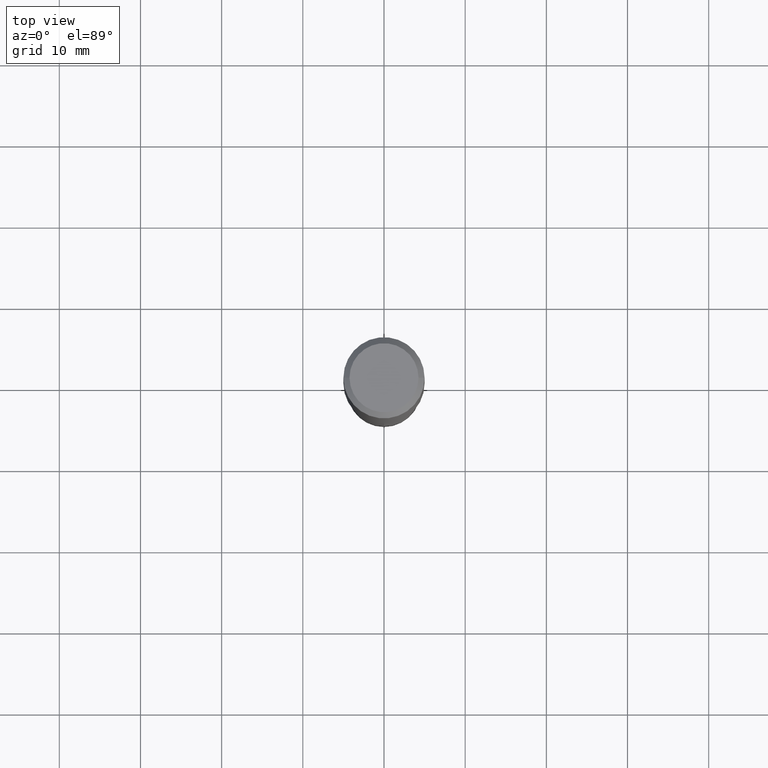
[diagram: clean part render]
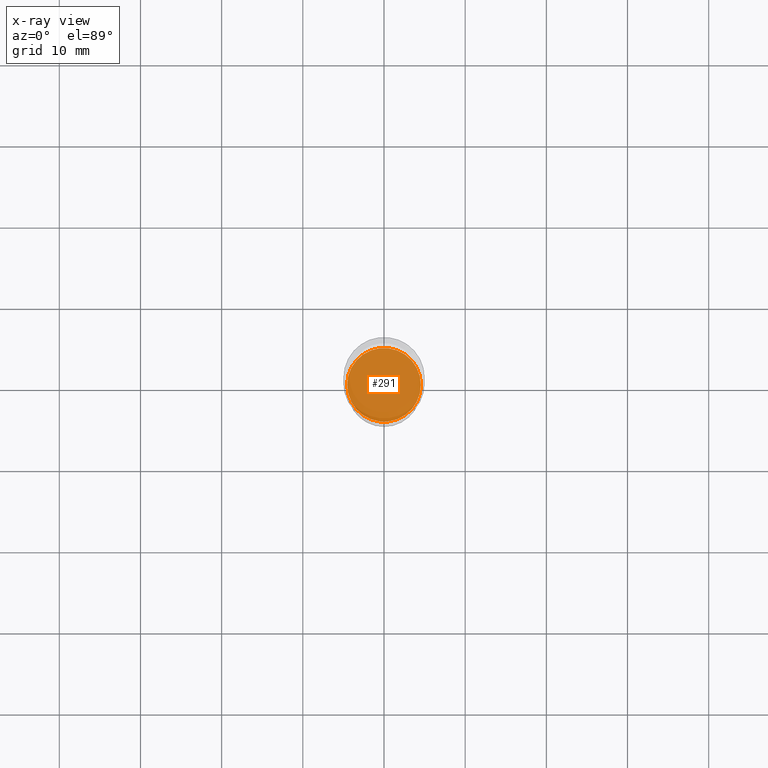
[diagram: x-ray — body ghosted, one internal face saturated and labeled with its STEP entity id]
A machine part, top view, then the same camera in x-ray: the body is ghosted and one INTERNAL B-rep face — a face not visible from any outside direction — is saturated and labeled: STEP entity #291.
In plain terms, the highlighted planar face has unit normal (-0, 0, 1).
Its self-contained STEP definition (entity closure, byte-faithful):
#15 = VERTEX_POINT ( 'NONE', #429 ) ;
#60 = AXIS2_PLACEMENT_3D ( 'NONE', #488, #409, #418 ) ;
#169 = EDGE_LOOP ( 'NONE', ( #306, #366 ) ) ;
#174 = CIRCLE ( 'NONE', #222, 0.1786500000000000310 ) ;
#177 = DIRECTION ( 'NONE',  ( 1.000000000000000000, -6.982962677686265922E-15, 4.876176775795935793E-29 ) ) ;
#188 = CARTESIAN_POINT ( 'NONE',  ( -0.1786500000000000310, -5.752128332875109429E-15, -2.011799999999999589 ) ) ;
#203 = CARTESIAN_POINT ( 'NONE',  ( 4.919794144283256694E-29, -7.024162157484638649E-15, -2.011799999999999589 ) ) ;
#222 = AXIS2_PLACEMENT_3D ( 'NONE', #203, #475, #273 ) ;
#256 = EDGE_CURVE ( 'NONE', #347, #15, #445, .T. ) ;
#257 = DIRECTION ( 'NONE',  ( -2.438088387897960049E-29, 3.491481338843145188E-15, 1.000000000000000000 ) ) ;
#273 = DIRECTION ( 'NONE',  ( 1.000000000000000000, -6.982962677686263555E-15, 0.000000000000000000 ) ) ;
#291 = ADVANCED_FACE ( 'NONE', ( #483 ), #296, .F. ) ;
#296 = PLANE ( 'NONE',  #428 ) ;
#306 = ORIENTED_EDGE ( 'NONE', *, *, #346, .F. ) ;
#346 = EDGE_CURVE ( 'NONE', #15, #347, #174, .T. ) ;
#347 = VERTEX_POINT ( 'NONE', #188 ) ;
#366 = ORIENTED_EDGE ( 'NONE', *, *, #256, .F. ) ;
#409 = DIRECTION ( 'NONE',  ( -2.445468806185136597E-29, 3.491481338843145583E-15, 1.000000000000000000 ) ) ;
#418 = DIRECTION ( 'NONE',  ( 1.000000000000000000, -6.982962677686263555E-15, 0.000000000000000000 ) ) ;
#428 = AXIS2_PLACEMENT_3D ( 'NONE', #448, #257, #177 ) ;
#429 = CARTESIAN_POINT ( 'NONE',  ( 0.1786500000000000310, -8.271668439853290854E-15, -2.011799999999999589 ) ) ;
#445 = CIRCLE ( 'NONE', #60, 0.1786500000000000310 ) ;
#448 = CARTESIAN_POINT ( 'NONE',  ( 7.068010578327116673E-29, -3.947793955047603297E-15, -2.011799999999999589 ) ) ;
#475 = DIRECTION ( 'NONE',  ( -2.445468806185136597E-29, 3.491481338843145583E-15, 1.000000000000000000 ) ) ;
#483 = FACE_OUTER_BOUND ( 'NONE', #169, .T. ) ;
#488 = CARTESIAN_POINT ( 'NONE',  ( 4.919794144283256694E-29, -7.024162157484638649E-15, -2.011799999999999589 ) ) ;